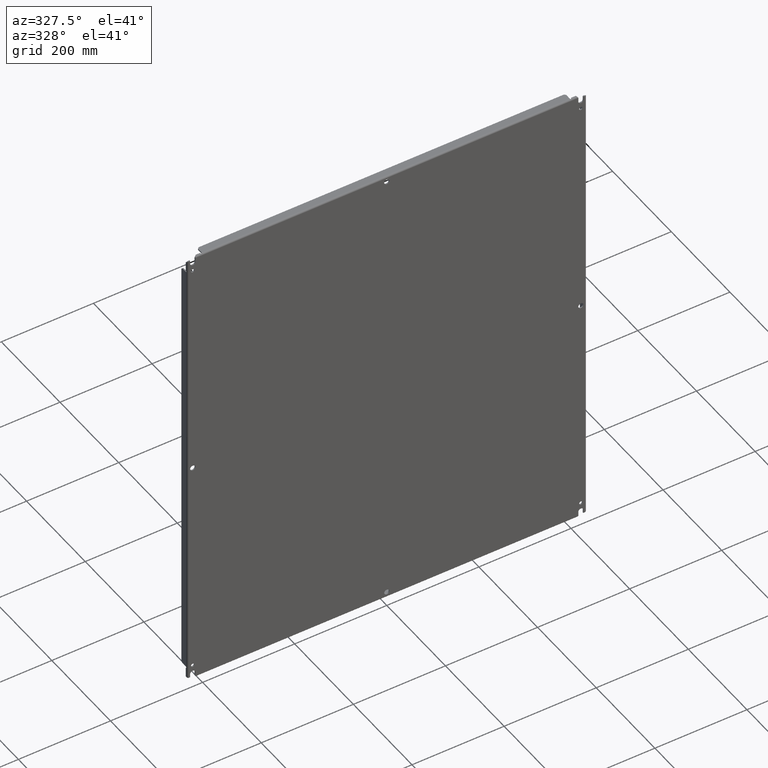
[diagram: clean part render]
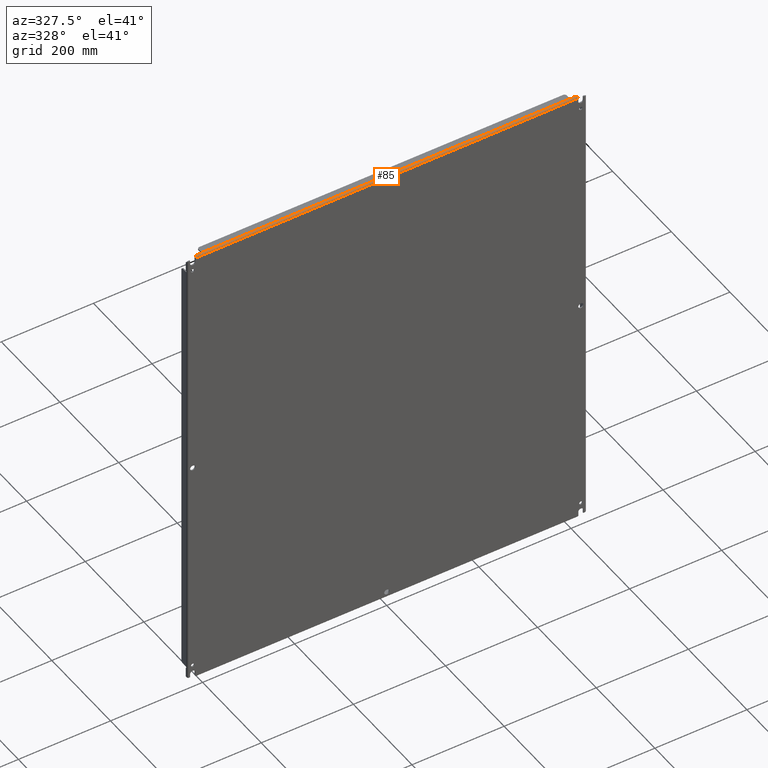
[diagram: same view with one face highlighted and labeled with its STEP entity id]
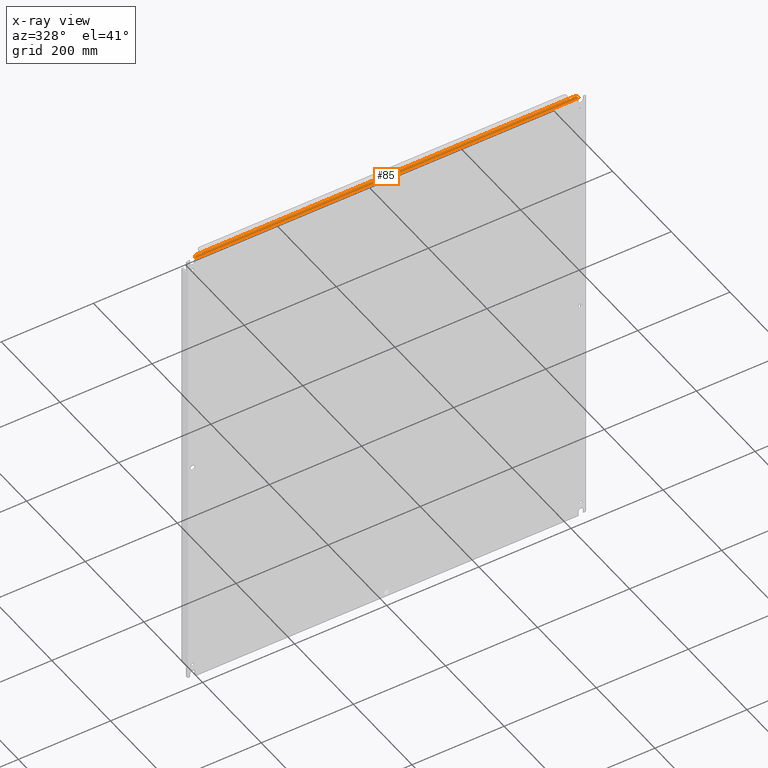
[diagram: x-ray of the same camera — body ghosted, the highlighted face saturated]
A machine part, auxiliary view. The second image highlights one B-rep face of the part: STEP entity #85.
The next image is the same camera in x-ray: the body ghosted, the highlighted face saturated — about 0% of this face is hidden behind the body in this view.
In plain terms, the highlighted cylindrical surface (edge-blend (fillet) strip) has radius 3.6322 mm, axis along (1, -0, -0).
Its self-contained STEP definition (entity closure, byte-faithful):
#18 = CYLINDRICAL_SURFACE ( 'NONE', #2530, 0.1429999999999989890 ) ;
#26 = EDGE_CURVE ( 'NONE', #623, #2874, #5022, .T. ) ;
#58 = CARTESIAN_POINT ( 'NONE',  ( 15.75689494906176691, 0.1135443402665122781, 20.08212127420393500 ) ) ;
#68 = ORIENTED_EDGE ( 'NONE', *, *, #4648, .T. ) ;
#85 = ADVANCED_FACE ( 'NONE', ( #4078 ), #18, .T. ) ;
#230 = DIRECTION ( 'NONE',  ( 1.000000000000000000, 0.0000000000000000000, -0.0000000000000000000 ) ) ;
#256 = CARTESIAN_POINT ( 'NONE',  ( -16.36709745680044392, 0.008176175360832742961, 19.99225046203038758 ) ) ;
#284 = CARTESIAN_POINT ( 'NONE',  ( -16.30650377783466354, 0.08909815929283138036, 20.07468827536491318 ) ) ;
#313 = CARTESIAN_POINT ( 'NONE',  ( -16.34287997660833014, 0.03236757560070888107, 20.03294937438598922 ) ) ;
#371 = CARTESIAN_POINT ( 'NONE',  ( -16.29435296874203232, 0.1115465039164719313, 20.08239239647454255 ) ) ;
#377 = CARTESIAN_POINT ( 'NONE',  ( -15.79507988684231989, 0.07789317999402378678, 20.06932623271908867 ) ) ;
#416 = VERTEX_POINT ( 'NONE', #7248 ) ;
#459 = CARTESIAN_POINT ( 'NONE',  ( 15.81832929678547295, 0.08033844165037223872, 20.07054725456001876 ) ) ;
#499 = VERTEX_POINT ( 'NONE', #3702 ) ;
#531 = CARTESIAN_POINT ( 'NONE',  ( 16.37525000000000119, 0.1430000000000000160, 19.94199999999999662 ) ) ;
#554 = DIRECTION ( 'NONE',  ( -1.000000000000000000, 0.0000000000000000000, 0.0000000000000000000 ) ) ;
#562 = B_SPLINE_CURVE_WITH_KNOTS ( 'NONE', 3,
 ( #6528, #1111, #1048, #7093, #5268, #2242, #1249, #7726, #459, #1080, #5292, #2888, #3500, #5488, #3683, #4254, #6132, #5546, #58, #1920, #675, #4282 ),
 .UNSPECIFIED., .F., .F.,
 ( 4, 2, 2, 2, 2, 2, 2, 2, 2, 2, 4 ),
 ( 5.681219383824043234E-17, 0.0005963793263626215695, 0.001192758652725186327, 0.001789137979087751084, 0.002087327642269060351, 0.002385517305450369618, 0.002683706968631678451, 0.002981896631812988151, 0.003578275958175605818, 0.004174655284538223918, 0.004771034610900842451 ),
 .UNSPECIFIED. ) ;
#587 = CARTESIAN_POINT ( 'NONE',  ( 16.31062002339055894, 0.08171299708499342451, 20.07144197658935880 ) ) ;
#623 = VERTEX_POINT ( 'NONE', #7554 ) ;
#675 = CARTESIAN_POINT ( 'NONE',  ( 15.74851585838278822, 0.1353164927476022406, 20.08500000000001151 ) ) ;
#804 = ORIENTED_EDGE ( 'NONE', *, *, #5474, .T. ) ;
#810 = EDGE_LOOP ( 'NONE', ( #6872, #2235, #6593, #68, #4419, #5186, #804, #3822, #7567, #5150 ) ) ;
#861 = CARTESIAN_POINT ( 'NONE',  ( -16.31058294895165517, 0.08177932416478413125, 20.07147158496610473 ) ) ;
#871 = CARTESIAN_POINT ( 'NONE',  ( -15.74851672033025984, 0.1353130993436448548, 20.08500000000000085 ) ) ;
#901 = CARTESIAN_POINT ( 'NONE',  ( -15.76928488986929011, 0.09413216944882069059, 20.07654993878714578 ) ) ;
#952 = CARTESIAN_POINT ( 'NONE',  ( -15.81092778395104759, 0.07789378009990720331, 20.06932660238707200 ) ) ;
#976 = CARTESIAN_POINT ( 'NONE',  ( -15.85748414161721875, 0.1353164927476014634, 20.08500000000000441 ) ) ;
#1025 = CARTESIAN_POINT ( 'NONE',  ( -15.83672614191542749, 0.09414802889300825928, 20.07655484390019396 ) ) ;
#1048 = CARTESIAN_POINT ( 'NONE',  ( 15.85508127898319231, 0.1278734892559576508, 20.08438206757837463 ) ) ;
#1080 = CARTESIAN_POINT ( 'NONE',  ( 15.81092011315764978, 0.07789317999401072778, 20.06932623271907090 ) ) ;
#1104 = VECTOR ( 'NONE', #5228, 39.37007874015748143 ) ;
#1111 = CARTESIAN_POINT ( 'NONE',  ( 15.85748327966974003, 0.1353130993436404694, 20.08500000000000441 ) ) ;
#1133 = EDGE_CURVE ( 'NONE', #416, #1502, #6493, .T. ) ;
#1135 = DIRECTION ( 'NONE',  ( 0.0000000000000000000, 0.0000000000000000000, -1.000000000000000000 ) ) ;
#1233 = AXIS2_PLACEMENT_3D ( 'NONE', #7807, #6553, #3606 ) ;
#1249 = CARTESIAN_POINT ( 'NONE',  ( 15.83142392799835640, 0.08846970025259043302, 20.07427630973400667 ) ) ;
#1502 = VERTEX_POINT ( 'NONE', #3186 ) ;
#1516 = CARTESIAN_POINT ( 'NONE',  ( -15.82187551109600321, 0.08213241809897982304, 20.07141995057842010 ) ) ;
#1617 = CARTESIAN_POINT ( 'NONE',  ( 16.36709746025715262, 0.008176175476552910784, 19.99225046248223592 ) ) ;
#1626 = CARTESIAN_POINT ( 'NONE',  ( -15.84548855908521503, 0.1065967463646558810, 20.08044249428121830 ) ) ;
#1652 = VERTEX_POINT ( 'NONE', #3953 ) ;
#1697 = CARTESIAN_POINT ( 'NONE',  ( 16.30661010829030744, 0.08890651298298336835, 20.07460692689978288 ) ) ;
#1751 = CARTESIAN_POINT ( 'NONE',  ( 16.27824999999999989, 0.1429999999999988503, 20.08500000000000085 ) ) ;
#1920 = CARTESIAN_POINT ( 'NONE',  ( 15.75091817406393346, 0.1278731986809016341, 20.08438253845441679 ) ) ;
#2059 = CARTESIAN_POINT ( 'NONE',  ( -16.31863626319611171, 0.06794921134403984764, 20.06397639765739171 ) ) ;
#2150 = CARTESIAN_POINT ( 'NONE',  ( -16.28640253973942720, 0.1270760356932768842, 20.08499999999853358 ) ) ;
#2190 = CARTESIAN_POINT ( 'NONE',  ( -15.85943580423810140, 0.1430000000000000160, 20.08500000000000085 ) ) ;
#2217 = CARTESIAN_POINT ( 'NONE',  ( -15.85508182593604687, 0.1278731986809027998, 20.08438253845440613 ) ) ;
#2235 = ORIENTED_EDGE ( 'NONE', *, *, #5726, .T. ) ;
#2242 = CARTESIAN_POINT ( 'NONE',  ( 15.83671511013068312, 0.09413216944880310744, 20.07654993878715288 ) ) ;
#2281 = CARTESIAN_POINT ( 'NONE',  ( 16.33486373680192472, 0.04295867132633546942, 20.04448216928109616 ) ) ;
#2375 = VECTOR ( 'NONE', #554, 39.37007874015748143 ) ;
#2530 = AXIS2_PLACEMENT_3D ( 'NONE', #531, #3595, #7218 ) ;
#2535 = LINE ( 'NONE', #3017, #4244 ) ;
#2651 = CARTESIAN_POINT ( 'NONE',  ( -16.32264408795209931, 0.06137435823609892205, 20.05967871943201786 ) ) ;
#2656 = VECTOR ( 'NONE', #230, 39.37007874015748143 ) ;
#2668 = CARTESIAN_POINT ( 'NONE',  ( -15.75688610507711473, 0.1135639434126204522, 20.08212488382784500 ) ) ;
#2731 = CARTESIAN_POINT ( 'NONE',  ( -16.27824999999999989, 0.1429999999898297347, 20.08499999999999730 ) ) ;
#2743 = CARTESIAN_POINT ( 'NONE',  ( -15.84910505093819744, 0.1135443402665051588, 20.08212127420393500 ) ) ;
#2792 = CARTESIAN_POINT ( 'NONE',  ( 16.37525000000000119, 0.1430000000000000437, 20.08499999999999730 ) ) ;
#2870 = CARTESIAN_POINT ( 'NONE',  ( 16.28640254319931202, 0.1270760361535645810, 20.08500000000000085 ) ) ;
#2874 = VERTEX_POINT ( 'NONE', #3531 ) ;
#2878 = EDGE_CURVE ( 'NONE', #499, #6778, #7811, .T. ) ;
#2888 = CARTESIAN_POINT ( 'NONE',  ( 15.79906092963927122, 0.07721134850412830763, 20.06896792246424610 ) ) ;
#2948 = DIRECTION ( 'NONE',  ( 1.000000000000000000, -0.0000000000000000000, -0.0000000000000000000 ) ) ;
#3017 = CARTESIAN_POINT ( 'NONE',  ( 16.37525000000000119, 0.1430000000000000437, 20.08499999999999730 ) ) ;
#3186 = CARTESIAN_POINT ( 'NONE',  ( -15.85943580423810140, 0.1430000000000000160, 20.08500000000000085 ) ) ;
#3277 = CARTESIAN_POINT ( 'NONE',  ( -16.34688989170871309, 0.02754694328080462690, 20.02674251644638659 ) ) ;
#3305 = CARTESIAN_POINT ( 'NONE',  ( -16.37525000000000119, 0.004300374720116508127, 19.97680537239019571 ) ) ;
#3312 = CARTESIAN_POINT ( 'NONE',  ( -15.77457607200162570, 0.08846970025261055581, 20.07427630973402088 ) ) ;
#3456 = CARTESIAN_POINT ( 'NONE',  ( 16.37525000000000119, 0.004300374725066091405, 19.97680537240991328 ) ) ;
#3487 = B_SPLINE_CURVE_WITH_KNOTS ( 'NONE', 3,
 ( #5696, #2150, #371, #284, #861, #2059, #2651, #6332, #6925, #313, #3277, #7531, #256, #3305 ),
 .UNSPECIFIED., .F., .F.,
 ( 4, 2, 2, 2, 2, 2, 4 ),
 ( 2.207529637482289230E-14, 0.001343848358577684607, 0.002015772537855478781, 0.002687696717133272739, 0.003359620896411066263, 0.004031545075688860655, 0.005375393434244448571 ),
 .UNSPECIFIED. ) ;
#3500 = CARTESIAN_POINT ( 'NONE',  ( 15.79507221604892209, 0.07789378009991811125, 20.06932660238706845 ) ) ;
#3531 = CARTESIAN_POINT ( 'NONE',  ( 16.27824999999999989, 0.1429999999999988503, 20.08500000000000085 ) ) ;
#3560 = VERTEX_POINT ( 'NONE', #5104 ) ;
#3595 = DIRECTION ( 'NONE',  ( 1.000000000000000000, -0.0000000000000000000, -0.0000000000000000000 ) ) ;
#3606 = DIRECTION ( 'NONE',  ( 0.0000000000000000000, -2.626776916984887063E-15, -1.000000000000000000 ) ) ;
#3683 = CARTESIAN_POINT ( 'NONE',  ( 15.78412448890397357, 0.08213241809899747559, 20.07141995057841655 ) ) ;
#3702 = CARTESIAN_POINT ( 'NONE',  ( -16.37525000000000119, 0.004300374720116508127, 19.97680537239019571 ) ) ;
#3822 = ORIENTED_EDGE ( 'NONE', *, *, #7054, .T. ) ;
#3953 = CARTESIAN_POINT ( 'NONE',  ( 15.85943580423810140, 0.1429999999999984339, 20.08500000000000085 ) ) ;
#4077 = CARTESIAN_POINT ( 'NONE',  ( 16.32279172274722612, 0.06113721677245986807, 20.05951387629876592 ) ) ;
#4078 = FACE_OUTER_BOUND ( 'NONE', #810, .T. ) ;
#4144 = CARTESIAN_POINT ( 'NONE',  ( -16.37525000000000119, 0.1430000000000000160, 19.94199999999999662 ) ) ;
#4244 = VECTOR ( 'NONE', #6665, 39.37007874015748143 ) ;
#4254 = CARTESIAN_POINT ( 'NONE',  ( 15.77456725729292408, 0.08848006819341083795, 20.07428046557443224 ) ) ;
#4266 = LINE ( 'NONE', #5500, #2656 ) ;
#4282 = CARTESIAN_POINT ( 'NONE',  ( 15.74656419576190025, 0.1429999999999992388, 20.08500000000000085 ) ) ;
#4299 = LINE ( 'NONE', #2792, #1104 ) ;
#4407 = EDGE_CURVE ( 'NONE', #5722, #499, #3487, .T. ) ;
#4419 = ORIENTED_EDGE ( 'NONE', *, *, #4407, .T. ) ;
#4648 = EDGE_CURVE ( 'NONE', #1502, #5722, #4299, .T. ) ;
#4705 = CARTESIAN_POINT ( 'NONE',  ( 16.31870319620751175, 0.06783695594599892242, 20.06390914173350737 ) ) ;
#4816 = CARTESIAN_POINT ( 'NONE',  ( 16.29454545944748389, 0.1111815292794355037, 20.08229752142811364 ) ) ;
#5022 = B_SPLINE_CURVE_WITH_KNOTS ( 'NONE', 3,
 ( #3456, #1617, #7081, #7109, #5184, #2281, #6514, #4077, #4705, #587, #1697, #4816, #2870, #1751 ),
 .UNSPECIFIED., .F., .F.,
 ( 4, 2, 2, 2, 2, 2, 4 ),
 ( 1.088267930632325076E-17, 0.001343848358509898986, 0.002015772537764880679, 0.002687696717019862156, 0.003359620896274844067, 0.004031545075529825543, 0.005375393434039811916 ),
 .UNSPECIFIED. ) ;
#5084 = EDGE_CURVE ( 'NONE', #1652, #7543, #562, .T. ) ;
#5104 = CARTESIAN_POINT ( 'NONE',  ( 16.37525000000000119, 0.0000000000000000000, 19.94199999999999662 ) ) ;
#5150 = ORIENTED_EDGE ( 'NONE', *, *, #6234, .T. ) ;
#5184 = CARTESIAN_POINT ( 'NONE',  ( 16.34291705104613257, 0.03232271399737350615, 20.03289224843982197 ) ) ;
#5186 = ORIENTED_EDGE ( 'NONE', *, *, #2878, .T. ) ;
#5228 = DIRECTION ( 'NONE',  ( -1.000000000000000000, 0.0000000000000000000, 0.0000000000000000000 ) ) ;
#5268 = CARTESIAN_POINT ( 'NONE',  ( 15.84550092863428006, 0.1066145063915895502, 20.08044799292614968 ) ) ;
#5292 = CARTESIAN_POINT ( 'NONE',  ( 15.80692738989149149, 0.07721005166756557403, 20.06896725049769969 ) ) ;
#5474 = EDGE_CURVE ( 'NONE', #6778, #3560, #4266, .T. ) ;
#5488 = CARTESIAN_POINT ( 'NONE',  ( 15.78764293353617454, 0.08034954724105539126, 20.07055272970346493 ) ) ;
#5500 = CARTESIAN_POINT ( 'NONE',  ( -17.66400000000000148, 0.0000000000000000000, 19.94199999999999662 ) ) ;
#5506 = LINE ( 'NONE', #7735, #2375 ) ;
#5546 = CARTESIAN_POINT ( 'NONE',  ( 15.76051144091475464, 0.1065967463646641661, 20.08044249428121475 ) ) ;
#5610 = CIRCLE ( 'NONE', #1233, 0.1429999999999989890 ) ;
#5683 = CARTESIAN_POINT ( 'NONE',  ( -15.75091872101680934, 0.1278734892559655056, 20.08438206757837108 ) ) ;
#5696 = CARTESIAN_POINT ( 'NONE',  ( -16.27824999999999989, 0.1429999999898297347, 20.08499999999999730 ) ) ;
#5722 = VERTEX_POINT ( 'NONE', #2731 ) ;
#5726 = EDGE_CURVE ( 'NONE', #7543, #416, #5506, .T. ) ;
#5744 = AXIS2_PLACEMENT_3D ( 'NONE', #4144, #2948, #1135 ) ;
#5831 = CARTESIAN_POINT ( 'NONE',  ( 15.74656419576190025, 0.1429999999999992388, 20.08500000000000085 ) ) ;
#5837 = CARTESIAN_POINT ( 'NONE',  ( -15.80693907036070200, 0.07721134850411459638, 20.06896792246426386 ) ) ;
#6132 = CARTESIAN_POINT ( 'NONE',  ( 15.76927385808455284, 0.09414802889303246214, 20.07655484390019396 ) ) ;
#6234 = EDGE_CURVE ( 'NONE', #2874, #1652, #2535, .T. ) ;
#6332 = CARTESIAN_POINT ( 'NONE',  ( -16.33070827725125085, 0.04894499334001768676, 20.05000315792937826 ) ) ;
#6472 = CARTESIAN_POINT ( 'NONE',  ( -15.79907261010847819, 0.07721005166756862714, 20.06896725049773167 ) ) ;
#6493 = B_SPLINE_CURVE_WITH_KNOTS ( 'NONE', 3,
 ( #6963, #871, #5683, #2668, #6935, #901, #3312, #7013, #7645, #377, #6472, #5837, #952, #7033, #1516, #7586, #1025, #1626, #2743, #2217, #976, #2190 ),
 .UNSPECIFIED., .F., .F.,
 ( 4, 2, 2, 2, 2, 2, 2, 2, 2, 2, 4 ),
 ( 1.070278344632508493E-16, 0.0005963793263618837699, 0.001192758652723660637, 0.001789137979085437397, 0.002087327642266365892, 0.002385517305447294387, 0.002683706968628223315, 0.002981896631809151377, 0.003578275958171223039, 0.004174655284533293834, 0.004771034610895365062 ),
 .UNSPECIFIED. ) ;
#6514 = CARTESIAN_POINT ( 'NONE',  ( 16.33085591204606146, 0.04872738860086302248, 20.04981326977932099 ) ) ;
#6528 = CARTESIAN_POINT ( 'NONE',  ( 15.85943580423810140, 0.1429999999999984339, 20.08500000000000085 ) ) ;
#6553 = DIRECTION ( 'NONE',  ( -1.000000000000000000, 0.0000000000000000000, 0.0000000000000000000 ) ) ;
#6593 = ORIENTED_EDGE ( 'NONE', *, *, #1133, .T. ) ;
#6665 = DIRECTION ( 'NONE',  ( -1.000000000000000000, 0.0000000000000000000, 0.0000000000000000000 ) ) ;
#6778 = VERTEX_POINT ( 'NONE', #7621 ) ;
#6872 = ORIENTED_EDGE ( 'NONE', *, *, #5084, .T. ) ;
#6925 = CARTESIAN_POINT ( 'NONE',  ( -16.33479680379112153, 0.04305122700645110795, 20.04457467916962798 ) ) ;
#6935 = CARTESIAN_POINT ( 'NONE',  ( -15.76049907136571626, 0.1066145063916306424, 20.08044799292615323 ) ) ;
#6963 = CARTESIAN_POINT ( 'NONE',  ( -15.74656419576190025, 0.1430000000000000160, 20.08500000000000085 ) ) ;
#7013 = CARTESIAN_POINT ( 'NONE',  ( -15.78414998659081370, 0.08211775055548073410, 20.07141308136901614 ) ) ;
#7033 = CARTESIAN_POINT ( 'NONE',  ( -15.81835706646379158, 0.08034954724104123591, 20.07055272970346493 ) ) ;
#7054 = EDGE_CURVE ( 'NONE', #3560, #623, #5610, .T. ) ;
#7081 = CARTESIAN_POINT ( 'NONE',  ( 16.35914703125521186, 0.01448515986961616472, 20.00667830602283459 ) ) ;
#7093 = CARTESIAN_POINT ( 'NONE',  ( 15.84911389492289224, 0.1135639434125864100, 20.08212488382784144 ) ) ;
#7109 = CARTESIAN_POINT ( 'NONE',  ( 16.34699622216300341, 0.02742139557041824161, 20.02657643317757419 ) ) ;
#7218 = DIRECTION ( 'NONE',  ( 0.0000000000000000000, 0.0000000000000000000, -1.000000000000000000 ) ) ;
#7248 = CARTESIAN_POINT ( 'NONE',  ( -15.74656419576190025, 0.1430000000000000160, 20.08500000000000085 ) ) ;
#7531 = CARTESIAN_POINT ( 'NONE',  ( -16.35895454055197717, 0.01466601449373226319, 20.00700921290065892 ) ) ;
#7543 = VERTEX_POINT ( 'NONE', #5831 ) ;
#7554 = CARTESIAN_POINT ( 'NONE',  ( 16.37525000000000119, 0.004300374725066091405, 19.97680537240991328 ) ) ;
#7567 = ORIENTED_EDGE ( 'NONE', *, *, #26, .T. ) ;
#7586 = CARTESIAN_POINT ( 'NONE',  ( -15.83143274270706513, 0.08848006819338424811, 20.07428046557443224 ) ) ;
#7621 = CARTESIAN_POINT ( 'NONE',  ( -16.37525000000000119, 0.0000000000000000000, 19.94199999999999662 ) ) ;
#7645 = CARTESIAN_POINT ( 'NONE',  ( -15.78767070321449673, 0.08033844165038718510, 20.07054725456002942 ) ) ;
#7726 = CARTESIAN_POINT ( 'NONE',  ( 15.82185001340915775, 0.08211775055546659263, 20.07141308136900193 ) ) ;
#7735 = CARTESIAN_POINT ( 'NONE',  ( 16.37525000000000119, 0.1430000000000000437, 20.08499999999999730 ) ) ;
#7807 = CARTESIAN_POINT ( 'NONE',  ( 16.37525000000000119, 0.1430000000000000160, 19.94199999999999662 ) ) ;
#7811 = CIRCLE ( 'NONE', #5744, 0.1429999999999989890 ) ;